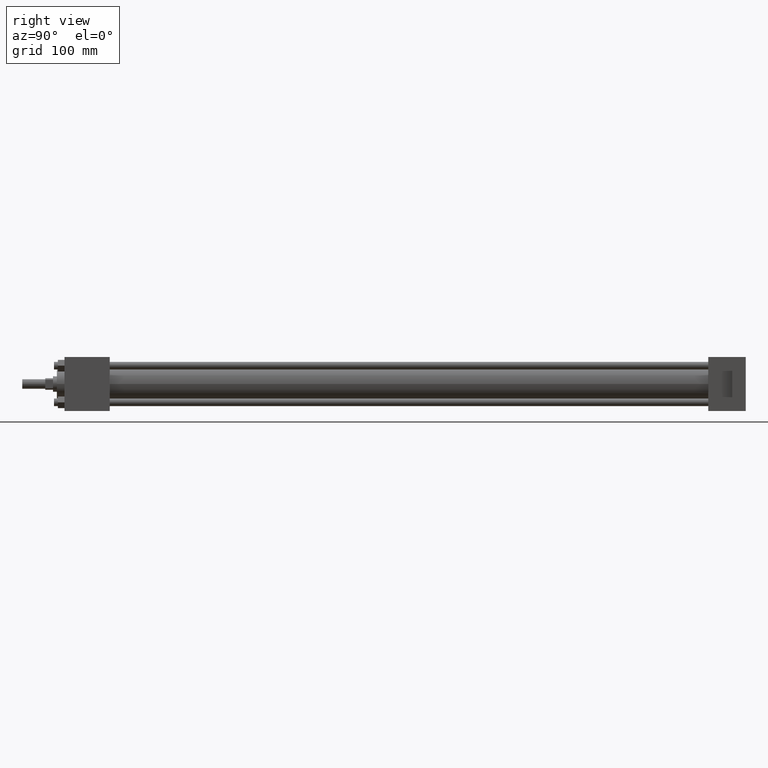
[diagram: clean part render]
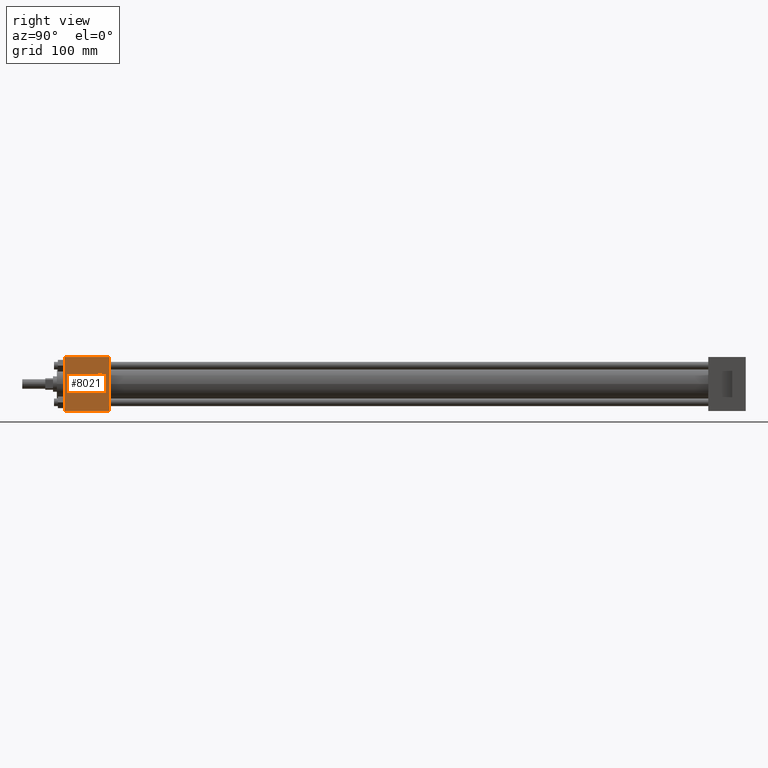
[diagram: same view with one face highlighted and labeled with its STEP entity id]
A machine part, right view. The second image highlights one B-rep face of the part: STEP entity #8021.
In plain terms, the highlighted planar face has unit normal (1, 0, 0).
Its self-contained STEP definition (entity closure, byte-faithful):
#486=VERTEX_POINT('',#488);
#488=CARTESIAN_POINT('',(2.222500000E+001,5.318125000E+001,-2.222500000E+001));
#501=VERTEX_POINT('',#502);
#502=CARTESIAN_POINT('',(2.222500000E+001,5.318125000E+001,2.222500000E+001));
#503=EDGE_CURVE('',#486,#501,#504,.T.);
#504=LINE('',#505,#506);
#505=CARTESIAN_POINT('',(2.222500000E+001,5.318125000E+001,-2.222500000E+001));
#506=VECTOR('',#507,1.0E+000);
#507=DIRECTION('',(0.0E+000,0.0E+000,1.0E+000));
#557=EDGE_CURVE('',#486,#562,#558,.T.);
#558=LINE('',#559,#560);
#559=CARTESIAN_POINT('',(2.222500000E+001,5.318125000E+001,-2.222500000E+001));
#560=VECTOR('',#561,1.0E+000);
#561=DIRECTION('',(0.0E+000,-1.0E+000,0.0E+000));
#562=VERTEX_POINT('',#563);
#563=CARTESIAN_POINT('',(2.222500000E+001,1.587500000E+001,-2.222500000E+001));
#610=VERTEX_POINT('',#611);
#611=CARTESIAN_POINT('',(2.222500000E+001,1.587500000E+001,2.222500000E+001));
#612=EDGE_CURVE('',#501,#610,#613,.T.);
#613=LINE('',#614,#615);
#614=CARTESIAN_POINT('',(2.222500000E+001,5.318125000E+001,2.222500000E+001));
#615=VECTOR('',#616,1.0E+000);
#616=DIRECTION('',(0.0E+000,-1.0E+000,0.0E+000));
#658=FACE_OUTER_BOUND('',#660,.T.);
#659=FACE_BOUND('',#661,.T.);
#660=EDGE_LOOP('',(#662,#663,#664,#665));
#661=EDGE_LOOP('',(#671));
#662=ORIENTED_EDGE('',*,*,#612,.T.);
#663=ORIENTED_EDGE('',*,*,#666,.F.);
#664=ORIENTED_EDGE('',*,*,#557,.F.);
#665=ORIENTED_EDGE('',*,*,#503,.T.);
#666=EDGE_CURVE('',#562,#610,#667,.T.);
#667=LINE('',#668,#669);
#668=CARTESIAN_POINT('',(2.222500000E+001,1.587500000E+001,-2.222500000E+001));
#669=VECTOR('',#670,1.0E+000);
#670=DIRECTION('',(0.0E+000,0.0E+000,1.0E+000));
#671=ORIENTED_EDGE('',*,*,#672,.T.);
#672=EDGE_CURVE('',#678,#678,#673,.T.);
#673=CIRCLE('',#674,2.778125000E+000);
#674=AXIS2_PLACEMENT_3D('',#675,#676,#677);
#675=CARTESIAN_POINT('',(2.222500000E+001,4.524375000E+001,6.350000000E+000));
#676=DIRECTION('',(-1.0E+000,0.0E+000,0.0E+000));
#677=DIRECTION('',(0.0E+000,1.0E+000,0.0E+000));
#678=VERTEX_POINT('',#679);
#679=CARTESIAN_POINT('',(2.222500000E+001,4.802187500E+001,6.350000000E+000));
#680=PLANE('',#681);
#681=AXIS2_PLACEMENT_3D('',#682,#683,#684);
#682=CARTESIAN_POINT('',(2.222500000E+001,5.318125000E+001,-2.222500000E+001));
#683=DIRECTION('',(1.0E+000,0.0E+000,0.0E+000));
#684=DIRECTION('',(0.0E+000,0.0E+000,-1.0E+000));
#8021=ADVANCED_FACE('',(#658,#659),#680,.T.);